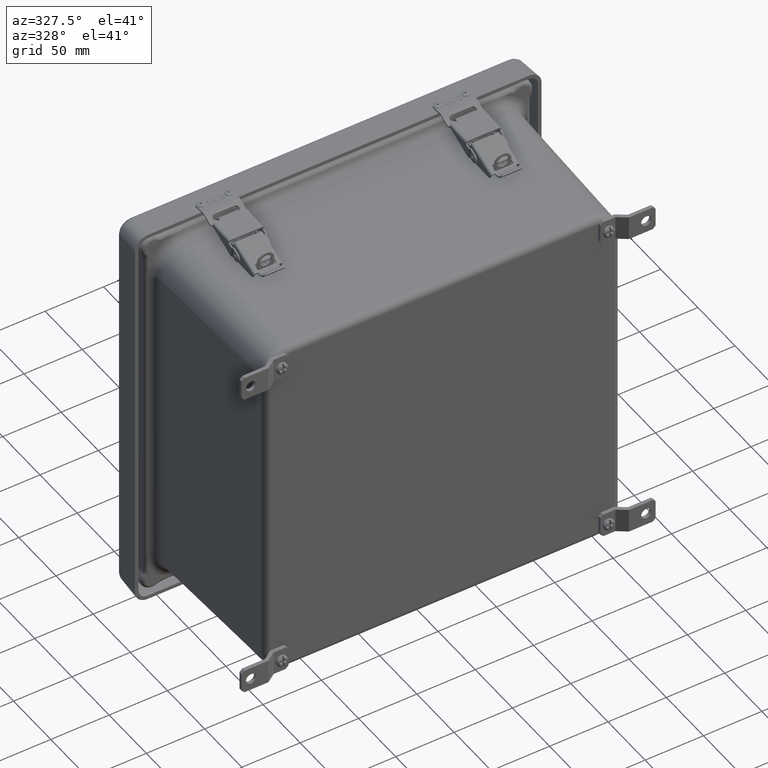
[diagram: clean part render]
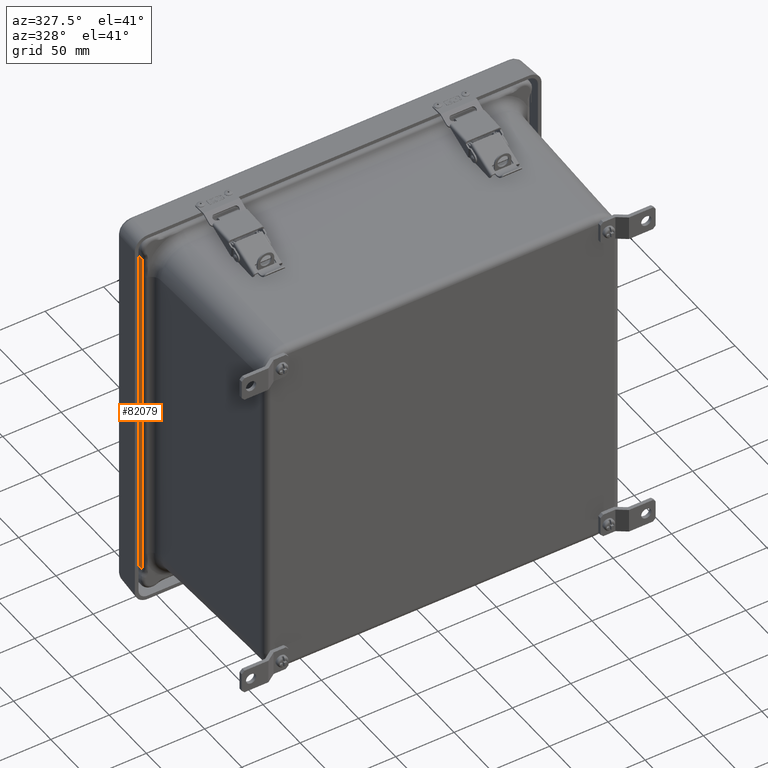
[diagram: same view with one face highlighted and labeled with its STEP entity id]
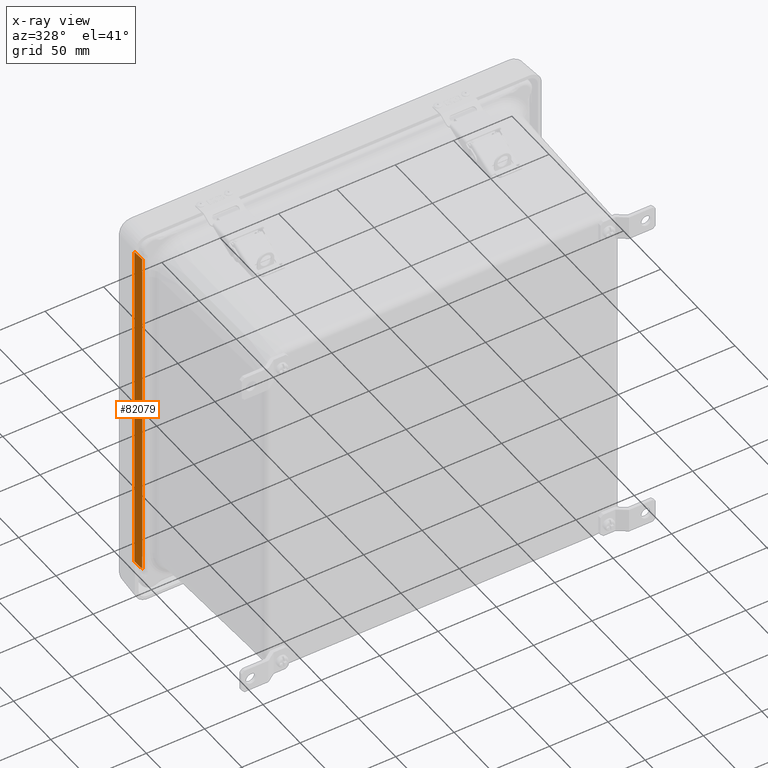
[diagram: x-ray of the same camera — body ghosted, the highlighted face saturated]
A machine part, auxiliary view. The second image highlights one B-rep face of the part: STEP entity #82079.
The next image is the same camera in x-ray: the body ghosted, the highlighted face saturated — about 0% of this face is hidden behind the body in this view.
In plain terms, the highlighted planar face has unit normal (-0.9994, -0.0349, 0).
Its self-contained STEP definition (entity closure, byte-faithful):
#1174 = B_SPLINE_CURVE_WITH_KNOTS ( 'NONE', 3,
 ( #38354, #79893, #96114, #104697, #30206, #47650 ),
 .UNSPECIFIED., .F., .F.,
 ( 4, 2, 4 ),
 ( 0.0000000000000000000, 0.005899841881613547200, 0.01179968376322709400 ),
 .UNSPECIFIED. ) ;
#3841 = LINE ( 'NONE', #10805, #38384 ) ;
#4874 = CARTESIAN_POINT ( 'NONE',  ( -6.521223728257102600, -0.4804095667726953600, -5.353846169878625700 ) ) ;
#6320 = VECTOR ( 'NONE', #88810, 39.37007874015748100 ) ;
#7125 = CARTESIAN_POINT ( 'NONE',  ( -6.535450783827104500, -0.07300000000000030100, -5.832665556545702400 ) ) ;
#7583 = CARTESIAN_POINT ( 'NONE',  ( -6.530790461134143900, -0.2064541810156797200, 5.833734616500447800 ) ) ;
#9061 = VERTEX_POINT ( 'NONE', #74212 ) ;
#10805 = CARTESIAN_POINT ( 'NONE',  ( -6.535450783827104500, -0.07299999999999999500, -5.971149650384328200 ) ) ;
#12298 = PLANE ( 'NONE',  #44663 ) ;
#12769 = CARTESIAN_POINT ( 'NONE',  ( -6.521469819448406600, -0.4733624370878125600, -5.663471140673605600 ) ) ;
#13123 = CARTESIAN_POINT ( 'NONE',  ( -6.521469819448407500, -0.4733624370878123900, -5.586031502004633600 ) ) ;
#14982 = CARTESIAN_POINT ( 'NONE',  ( -6.526130139659237300, -0.3399083271509669200, -5.834808045374805900 ) ) ;
#16356 = B_SPLINE_CURVE_WITH_KNOTS ( 'NONE', 3,
 ( #7125, #47151, #14982, #47866 ),
 .UNSPECIFIED., .F., .F.,
 ( 4, 4 ),
 ( 0.001855389582741669200, 0.01203112284004128100 ),
 .UNSPECIFIED. ) ;
#17075 = VERTEX_POINT ( 'NONE', #98693 ) ;
#19004 = DIRECTION ( 'NONE',  ( -1.830031503892005400E-016, 0.0000000000000000000, -1.000000000000000000 ) ) ;
#20405 = LINE ( 'NONE', #22567, #6320 ) ;
#20506 = VECTOR ( 'NONE', #101674, 39.37007874015748100 ) ;
#22567 = CARTESIAN_POINT ( 'NONE',  ( -6.521469819448406600, -0.4733624370878125600, -5.971149650384328200 ) ) ;
#23426 = CARTESIAN_POINT ( 'NONE',  ( -6.521469819448406600, -0.4733624370878125600, -5.663471140673605600 ) ) ;
#27350 = EDGE_CURVE ( 'NONE', #86395, #17075, #35916, .T. ) ;
#28949 = CARTESIAN_POINT ( 'NONE',  ( -6.521469819448406600, -0.4733624370878125600, -5.971149650384328200 ) ) ;
#29303 = EDGE_CURVE ( 'NONE', #71575, #86395, #44789, .T. ) ;
#30206 = CARTESIAN_POINT ( 'NONE',  ( -6.521469819448404000, -0.4733624370878125600, 5.586031502004638900 ) ) ;
#30215 = ORIENTED_EDGE ( 'NONE', *, *, #58393, .T. ) ;
#34307 = ORIENTED_EDGE ( 'NONE', *, *, #29303, .T. ) ;
#35916 = B_SPLINE_CURVE_WITH_KNOTS ( 'NONE', 3,
 ( #12769, #13123, #62454, #4874, #95827, #47021 ),
 .UNSPECIFIED., .F., .F.,
 ( 4, 2, 4 ),
 ( 0.0000000000000000000, 0.005899841881613490800, 0.01179968376322698200 ),
 .UNSPECIFIED. ) ;
#36863 = VERTEX_POINT ( 'NONE', #87862 ) ;
#36887 = CARTESIAN_POINT ( 'NONE',  ( -6.538000000000002000, 0.0000000000000000000, -5.971149650384328200 ) ) ;
#38354 = CARTESIAN_POINT ( 'NONE',  ( -6.521162736960478800, -0.4821561289908248300, 5.199000000000002500 ) ) ;
#38384 = VECTOR ( 'NONE', #19004, 39.37007874015748100 ) ;
#41297 = ORIENTED_EDGE ( 'NONE', *, *, #27350, .T. ) ;
#42973 = VERTEX_POINT ( 'NONE', #50249 ) ;
#44663 = AXIS2_PLACEMENT_3D ( 'NONE', #36887, #77383, #62320 ) ;
#44789 = LINE ( 'NONE', #28949, #20506 ) ;
#46999 = VERTEX_POINT ( 'NONE', #103643 ) ;
#47021 = CARTESIAN_POINT ( 'NONE',  ( -6.521162736960479700, -0.4821561289908241600, -5.198999999999999800 ) ) ;
#47151 = CARTESIAN_POINT ( 'NONE',  ( -6.530790461134145600, -0.2064541810156800800, -5.833734616500452200 ) ) ;
#47631 = ORIENTED_EDGE ( 'NONE', *, *, #88041, .T. ) ;
#47650 = CARTESIAN_POINT ( 'NONE',  ( -6.521469819448404000, -0.4733624370878125600, 5.663471140673611800 ) ) ;
#47866 = CARTESIAN_POINT ( 'NONE',  ( -6.521469819448406600, -0.4733624370878126700, -5.835885952537783100 ) ) ;
#50249 = CARTESIAN_POINT ( 'NONE',  ( -6.521162736960478800, -0.4821561289908248300, 5.199000000000002500 ) ) ;
#50496 = VECTOR ( 'NONE', #87196, 39.37007874015748100 ) ;
#53185 = CARTESIAN_POINT ( 'NONE',  ( -6.521469819448406600, -0.4733624370878126700, -5.835885952537783100 ) ) ;
#53687 = ORIENTED_EDGE ( 'NONE', *, *, #81633, .T. ) ;
#54194 = CARTESIAN_POINT ( 'NONE',  ( -6.521162736960478800, -0.4821561289908240500, 5.836861563668750600 ) ) ;
#54276 = EDGE_CURVE ( 'NONE', #79545, #9061, #3841, .T. ) ;
#56382 = ORIENTED_EDGE ( 'NONE', *, *, #54276, .T. ) ;
#56554 = CARTESIAN_POINT ( 'NONE',  ( -6.521469819448404000, -0.4733624370878125600, 5.835885952537778600 ) ) ;
#58393 = EDGE_CURVE ( 'NONE', #36863, #79545, #76402, .T. ) ;
#62320 = DIRECTION ( 'NONE',  ( 0.03489949670250104600, -0.9993908270190957600, 0.0000000000000000000 ) ) ;
#62454 = CARTESIAN_POINT ( 'NONE',  ( -6.521378789529761000, -0.4759691928944745400, -5.508641276440401100 ) ) ;
#66840 = EDGE_CURVE ( 'NONE', #42973, #46999, #1174, .T. ) ;
#71575 = VERTEX_POINT ( 'NONE', #53185 ) ;
#73695 = EDGE_CURVE ( 'NONE', #9061, #71575, #16356, .T. ) ;
#74212 = CARTESIAN_POINT ( 'NONE',  ( -6.535450783827104500, -0.07300000000000030100, -5.832665556545702400 ) ) ;
#76402 = B_SPLINE_CURVE_WITH_KNOTS ( 'NONE', 3,
 ( #56554, #97131, #7583, #81653 ),
 .UNSPECIFIED., .F., .F.,
 ( 4, 4 ),
 ( 0.003066161996561677300, 0.01324189525386129700 ),
 .UNSPECIFIED. ) ;
#77383 = DIRECTION ( 'NONE',  ( -0.9993908270190957600, -0.03489949670250104600, 1.828916698145630500E-016 ) ) ;
#79545 = VERTEX_POINT ( 'NONE', #100830 ) ;
#79893 = CARTESIAN_POINT ( 'NONE',  ( -6.521162736960479700, -0.4821561289908248300, 5.276439638668977100 ) ) ;
#81633 = EDGE_CURVE ( 'NONE', #17075, #42973, #101895, .T. ) ;
#81653 = CARTESIAN_POINT ( 'NONE',  ( -6.535450783827102800, -0.07299999999999999500, 5.832665556545689100 ) ) ;
#82079 = ADVANCED_FACE ( 'NONE', ( #92827 ), #12298, .T. ) ;
#83255 = ORIENTED_EDGE ( 'NONE', *, *, #73695, .T. ) ;
#86395 = VERTEX_POINT ( 'NONE', #23426 ) ;
#87196 = DIRECTION ( 'NONE',  ( 1.827802571508795100E-016, 6.382827227608251600E-018, 1.000000000000000000 ) ) ;
#87862 = CARTESIAN_POINT ( 'NONE',  ( -6.521469819448404000, -0.4733624370878125600, 5.835885952537778600 ) ) ;
#88041 = EDGE_CURVE ( 'NONE', #46999, #36863, #20405, .T. ) ;
#88810 = DIRECTION ( 'NONE',  ( 1.830031503892004900E-016, 8.996703976050223000E-035, 1.000000000000000000 ) ) ;
#92827 = FACE_OUTER_BOUND ( 'NONE', #105760, .T. ) ;
#95827 = CARTESIAN_POINT ( 'NONE',  ( -6.521162736960479700, -0.4821561289908242700, -5.276439638668972700 ) ) ;
#95893 = ORIENTED_EDGE ( 'NONE', *, *, #66840, .T. ) ;
#96114 = CARTESIAN_POINT ( 'NONE',  ( -6.521223728257102600, -0.4804095667726959200, 5.353846169878630200 ) ) ;
#97131 = CARTESIAN_POINT ( 'NONE',  ( -6.526130139659235500, -0.3399083271509666400, 5.834808045374801500 ) ) ;
#98693 = CARTESIAN_POINT ( 'NONE',  ( -6.521162736960479700, -0.4821561289908241600, -5.198999999999999800 ) ) ;
#100830 = CARTESIAN_POINT ( 'NONE',  ( -6.535450783827102800, -0.07299999999999999500, 5.832665556545689100 ) ) ;
#101674 = DIRECTION ( 'NONE',  ( 1.830031503892004900E-016, 8.996703976050223000E-035, 1.000000000000000000 ) ) ;
#101895 = LINE ( 'NONE', #54194, #50496 ) ;
#103643 = CARTESIAN_POINT ( 'NONE',  ( -6.521469819448404000, -0.4733624370878125600, 5.663471140673611800 ) ) ;
#104697 = CARTESIAN_POINT ( 'NONE',  ( -6.521378789529761000, -0.4759691928944749800, 5.508641276440405600 ) ) ;
#105760 = EDGE_LOOP ( 'NONE', ( #30215, #56382, #83255, #34307, #41297, #53687, #95893, #47631 ) ) ;